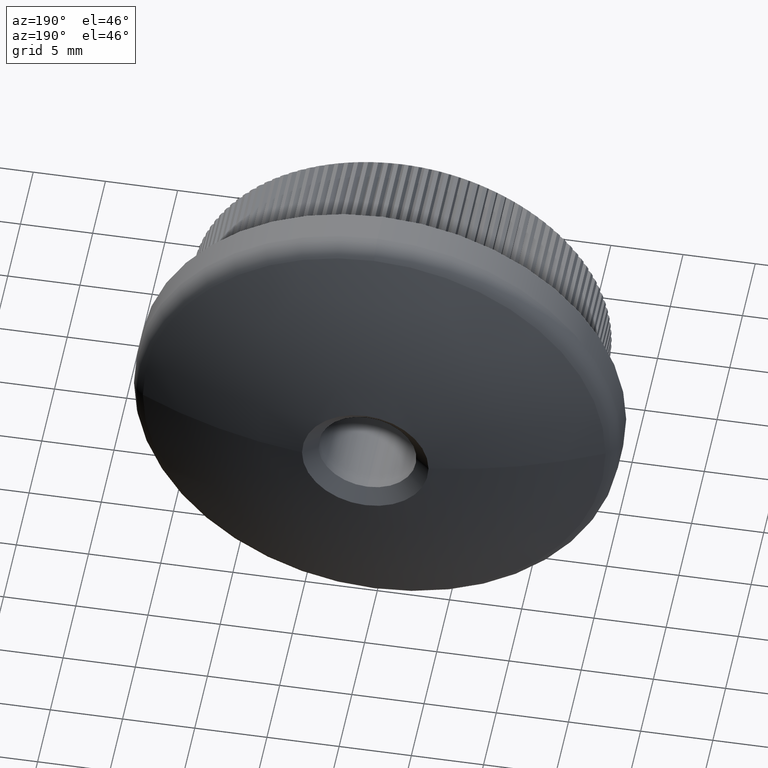
[diagram: clean part render]
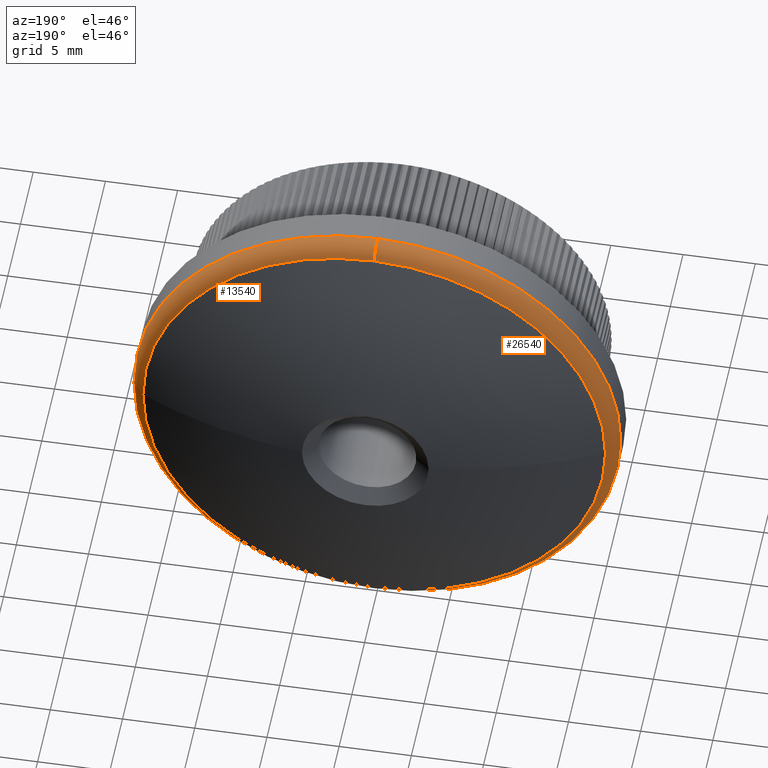
[diagram: same view with one multi-face feature highlighted, each face labeled with its STEP entity id]
A machine part, auxiliary view. The highlighted faces form ONE feature: a constant-radius fillet chain: 2 tangent blend faces with common blend radius 1.5 mm. The faces share edges in the B-rep.
Their STEP definitions:
[1] entity #26540 (Torus):
#50 = CIRCLE ( 'NONE', #16642, 16.01932560453346000 ) ;
#158 = DIRECTION ( 'NONE',  ( 0.0000000000000000000, 0.0000000000000000000, -1.000000000000000000 ) ) ;
#854 = AXIS2_PLACEMENT_3D ( 'NONE', #25917, #26177, #15830 ) ;
#948 = DIRECTION ( 'NONE',  ( 0.0000000000000000000, 0.0000000000000000000, -1.000000000000000000 ) ) ;
#1904 = DIRECTION ( 'NONE',  ( 0.0000000000000000000, 0.0000000000000000000, -1.000000000000000000 ) ) ;
#2060 = CARTESIAN_POINT ( 'NONE',  ( 0.0000000000000000000, 9.885380484236923900, -16.85000000000000500 ) ) ;
#2516 = EDGE_CURVE ( 'NONE', #22602, #19355, #50, .T. ) ;
#3141 = EDGE_CURVE ( 'NONE', #19355, #18235, #3882, .T. ) ;
#3773 = CIRCLE ( 'NONE', #4887, 1.499999999999999600 ) ;
#3790 = DIRECTION ( 'NONE',  ( -0.0000000000000000000, -1.000000000000000000, -0.0000000000000000000 ) ) ;
#3882 = CIRCLE ( 'NONE', #10469, 16.01932560453346000 ) ;
#4887 = AXIS2_PLACEMENT_3D ( 'NONE', #23117, #12723, #8607 ) ;
#5764 = AXIS2_PLACEMENT_3D ( 'NONE', #20197, #3790, #1904 ) ;
#7753 = CARTESIAN_POINT ( 'NONE',  ( 2.063529856563290600E-015, 9.885380484236923900, 16.85000000000000500 ) ) ;
#8222 = CARTESIAN_POINT ( 'NONE',  ( 0.0000000000000000000, 11.22776762478764600, 0.0000000000000000000 ) ) ;
#8607 = DIRECTION ( 'NONE',  ( -1.224646799147353500E-016, 0.0000000000000000000, -1.000000000000000000 ) ) ;
#9188 = CARTESIAN_POINT ( 'NONE',  ( 2.012665719586202600E-015, 11.22776762478764600, 16.01932560453346000 ) ) ;
#10059 = DIRECTION ( 'NONE',  ( 0.0000000000000000000, 1.000000000000000000, 0.0000000000000000000 ) ) ;
#10469 = AXIS2_PLACEMENT_3D ( 'NONE', #8222, #24686, #158 ) ;
#11131 = ORIENTED_EDGE ( 'NONE', *, *, #2516, .F. ) ;
#11939 = CARTESIAN_POINT ( 'NONE',  ( 0.0000000000000000000, 11.22776762478764600, -16.01932560453346000 ) ) ;
#12210 = CARTESIAN_POINT ( 'NONE',  ( 0.0000000000000000000, 11.22776762478764600, 0.0000000000000000000 ) ) ;
#12666 = ORIENTED_EDGE ( 'NONE', *, *, #17308, .F. ) ;
#12723 = DIRECTION ( 'NONE',  ( 1.000000000000000000, 0.0000000000000000000, -1.224646799147353500E-016 ) ) ;
#12736 = VERTEX_POINT ( 'NONE', #2060 ) ;
#13168 = CARTESIAN_POINT ( 'NONE',  ( -16.01932560453345300, 11.22776762478764600, 1.961801582609113400E-015 ) ) ;
#13227 = DIRECTION ( 'NONE',  ( -0.0000000000000000000, -1.000000000000000000, -0.0000000000000000000 ) ) ;
#13672 = TOROIDAL_SURFACE ( 'NONE', #5764, 15.35000000000000500, 1.500000000000000000 ) ;
#15406 = CIRCLE ( 'NONE', #25046, 16.85000000000000500 ) ;
#15830 = DIRECTION ( 'NONE',  ( 0.0000000000000000000, 0.0000000000000000000, 1.000000000000000000 ) ) ;
#16642 = AXIS2_PLACEMENT_3D ( 'NONE', #12210, #10059, #24388 ) ;
#16716 = CIRCLE ( 'NONE', #854, 1.499999999999999600 ) ;
#16882 = ORIENTED_EDGE ( 'NONE', *, *, #17459, .T. ) ;
#17308 = EDGE_CURVE ( 'NONE', #18486, #12736, #15406, .T. ) ;
#17459 = EDGE_CURVE ( 'NONE', #22602, #12736, #16716, .T. ) ;
#18235 = VERTEX_POINT ( 'NONE', #9188 ) ;
#18486 = VERTEX_POINT ( 'NONE', #7753 ) ;
#19336 = CARTESIAN_POINT ( 'NONE',  ( 0.0000000000000000000, 9.885380484236923900, 0.0000000000000000000 ) ) ;
#19355 = VERTEX_POINT ( 'NONE', #13168 ) ;
#20197 = CARTESIAN_POINT ( 'NONE',  ( 0.0000000000000000000, 9.885380484236923900, 0.0000000000000000000 ) ) ;
#20461 = ORIENTED_EDGE ( 'NONE', *, *, #25375, .F. ) ;
#21292 = ORIENTED_EDGE ( 'NONE', *, *, #3141, .F. ) ;
#21834 = EDGE_LOOP ( 'NONE', ( #20461, #21292, #11131, #16882, #12666 ) ) ;
#22602 = VERTEX_POINT ( 'NONE', #11939 ) ;
#23117 = CARTESIAN_POINT ( 'NONE',  ( 1.879832836691188300E-015, 9.885380484236923900, 15.35000000000000500 ) ) ;
#24388 = DIRECTION ( 'NONE',  ( 0.0000000000000000000, 0.0000000000000000000, -1.000000000000000000 ) ) ;
#24686 = DIRECTION ( 'NONE',  ( 0.0000000000000000000, 1.000000000000000000, 0.0000000000000000000 ) ) ;
#25046 = AXIS2_PLACEMENT_3D ( 'NONE', #19336, #13227, #948 ) ;
#25375 = EDGE_CURVE ( 'NONE', #18235, #18486, #3773, .T. ) ;
#25840 = FACE_OUTER_BOUND ( 'NONE', #21834, .T. ) ;
#25917 = CARTESIAN_POINT ( 'NONE',  ( 0.0000000000000000000, 9.885380484236923900, -15.35000000000000500 ) ) ;
#26177 = DIRECTION ( 'NONE',  ( -1.000000000000000000, 0.0000000000000000000, 0.0000000000000000000 ) ) ;
#26540 = ADVANCED_FACE ( 'NONE', ( #25840 ), #13672, .T. ) ;
[2] entity #13540 (Torus):
#854 = AXIS2_PLACEMENT_3D ( 'NONE', #25917, #26177, #15830 ) ;
#1018 = CIRCLE ( 'NONE', #4767, 16.01932560453346000 ) ;
#1836 = DIRECTION ( 'NONE',  ( 0.0000000000000000000, 0.0000000000000000000, -1.000000000000000000 ) ) ;
#2060 = CARTESIAN_POINT ( 'NONE',  ( 0.0000000000000000000, 9.885380484236923900, -16.85000000000000500 ) ) ;
#3773 = CIRCLE ( 'NONE', #4887, 1.499999999999999600 ) ;
#3967 = FACE_OUTER_BOUND ( 'NONE', #26256, .T. ) ;
#3974 = ORIENTED_EDGE ( 'NONE', *, *, #14908, .F. ) ;
#4317 = AXIS2_PLACEMENT_3D ( 'NONE', #22934, #20978, #19373 ) ;
#4525 = AXIS2_PLACEMENT_3D ( 'NONE', #12992, #23208, #19380 ) ;
#4767 = AXIS2_PLACEMENT_3D ( 'NONE', #20240, #24183, #9753 ) ;
#4887 = AXIS2_PLACEMENT_3D ( 'NONE', #23117, #12723, #8607 ) ;
#7010 = CIRCLE ( 'NONE', #4317, 16.01932560453346000 ) ;
#7753 = CARTESIAN_POINT ( 'NONE',  ( 2.063529856563290600E-015, 9.885380484236923900, 16.85000000000000500 ) ) ;
#8607 = DIRECTION ( 'NONE',  ( -1.224646799147353500E-016, 0.0000000000000000000, -1.000000000000000000 ) ) ;
#9053 = AXIS2_PLACEMENT_3D ( 'NONE', #14299, #18259, #1836 ) ;
#9188 = CARTESIAN_POINT ( 'NONE',  ( 2.012665719586202600E-015, 11.22776762478764600, 16.01932560453346000 ) ) ;
#9753 = DIRECTION ( 'NONE',  ( 0.0000000000000000000, 0.0000000000000000000, -1.000000000000000000 ) ) ;
#10003 = CARTESIAN_POINT ( 'NONE',  ( 16.01932560453345300, 11.22776762478764600, 0.0000000000000000000 ) ) ;
#11939 = CARTESIAN_POINT ( 'NONE',  ( 0.0000000000000000000, 11.22776762478764600, -16.01932560453346000 ) ) ;
#12723 = DIRECTION ( 'NONE',  ( 1.000000000000000000, 0.0000000000000000000, -1.224646799147353500E-016 ) ) ;
#12736 = VERTEX_POINT ( 'NONE', #2060 ) ;
#12923 = ORIENTED_EDGE ( 'NONE', *, *, #17459, .F. ) ;
#12992 = CARTESIAN_POINT ( 'NONE',  ( 0.0000000000000000000, 9.885380484236923900, 0.0000000000000000000 ) ) ;
#13540 = ADVANCED_FACE ( 'NONE', ( #3967 ), #25432, .T. ) ;
#14299 = CARTESIAN_POINT ( 'NONE',  ( 0.0000000000000000000, 9.885380484236923900, 0.0000000000000000000 ) ) ;
#14389 = ORIENTED_EDGE ( 'NONE', *, *, #25447, .F. ) ;
#14908 = EDGE_CURVE ( 'NONE', #18033, #22602, #1018, .T. ) ;
#15830 = DIRECTION ( 'NONE',  ( 0.0000000000000000000, 0.0000000000000000000, 1.000000000000000000 ) ) ;
#16716 = CIRCLE ( 'NONE', #854, 1.499999999999999600 ) ;
#17459 = EDGE_CURVE ( 'NONE', #22602, #12736, #16716, .T. ) ;
#18033 = VERTEX_POINT ( 'NONE', #10003 ) ;
#18235 = VERTEX_POINT ( 'NONE', #9188 ) ;
#18259 = DIRECTION ( 'NONE',  ( -0.0000000000000000000, -1.000000000000000000, -0.0000000000000000000 ) ) ;
#18486 = VERTEX_POINT ( 'NONE', #7753 ) ;
#19373 = DIRECTION ( 'NONE',  ( 0.0000000000000000000, 0.0000000000000000000, -1.000000000000000000 ) ) ;
#19380 = DIRECTION ( 'NONE',  ( 0.0000000000000000000, 0.0000000000000000000, -1.000000000000000000 ) ) ;
#20049 = ORIENTED_EDGE ( 'NONE', *, *, #25375, .T. ) ;
#20133 = CIRCLE ( 'NONE', #4525, 16.85000000000000500 ) ;
#20240 = CARTESIAN_POINT ( 'NONE',  ( 0.0000000000000000000, 11.22776762478764600, 0.0000000000000000000 ) ) ;
#20978 = DIRECTION ( 'NONE',  ( 0.0000000000000000000, 1.000000000000000000, 0.0000000000000000000 ) ) ;
#21824 = ORIENTED_EDGE ( 'NONE', *, *, #24656, .F. ) ;
#22602 = VERTEX_POINT ( 'NONE', #11939 ) ;
#22934 = CARTESIAN_POINT ( 'NONE',  ( 0.0000000000000000000, 11.22776762478764600, 0.0000000000000000000 ) ) ;
#23117 = CARTESIAN_POINT ( 'NONE',  ( 1.879832836691188300E-015, 9.885380484236923900, 15.35000000000000500 ) ) ;
#23208 = DIRECTION ( 'NONE',  ( -0.0000000000000000000, -1.000000000000000000, -0.0000000000000000000 ) ) ;
#24183 = DIRECTION ( 'NONE',  ( 0.0000000000000000000, 1.000000000000000000, 0.0000000000000000000 ) ) ;
#24656 = EDGE_CURVE ( 'NONE', #18235, #18033, #7010, .T. ) ;
#25375 = EDGE_CURVE ( 'NONE', #18235, #18486, #3773, .T. ) ;
#25432 = TOROIDAL_SURFACE ( 'NONE', #9053, 15.35000000000000500, 1.500000000000000000 ) ;
#25447 = EDGE_CURVE ( 'NONE', #12736, #18486, #20133, .T. ) ;
#25917 = CARTESIAN_POINT ( 'NONE',  ( 0.0000000000000000000, 9.885380484236923900, -15.35000000000000500 ) ) ;
#26177 = DIRECTION ( 'NONE',  ( -1.000000000000000000, 0.0000000000000000000, 0.0000000000000000000 ) ) ;
#26256 = EDGE_LOOP ( 'NONE', ( #21824, #20049, #14389, #12923, #3974 ) ) ;